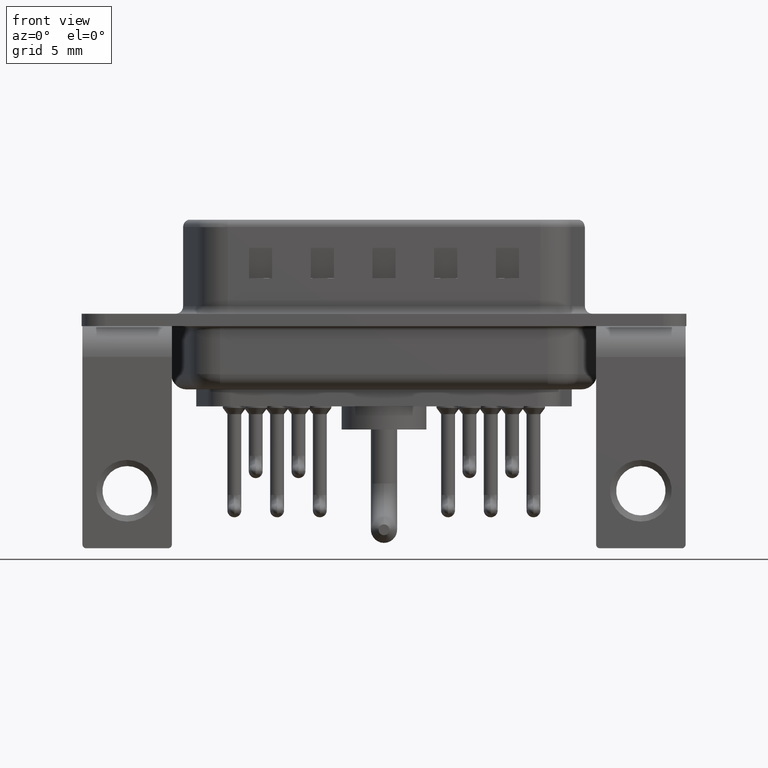
[diagram: clean part render]
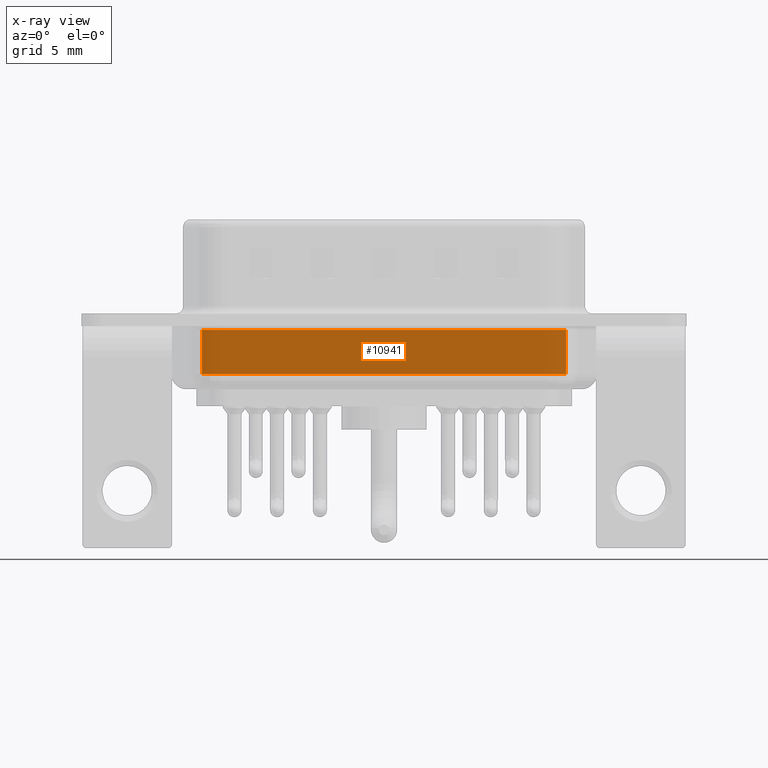
[diagram: x-ray — body ghosted, one internal face saturated and labeled with its STEP entity id]
A machine part, front view, then the same camera in x-ray: the body is ghosted and one INTERNAL B-rep face — a face not visible from any outside direction — is saturated and labeled: STEP entity #10941.
In plain terms, the highlighted planar face has unit normal (0, -1, 0).
Its self-contained STEP definition (entity closure, byte-faithful):
#767 = CARTESIAN_POINT ( 'NONE',  ( 28.44999999999999574, 4.950000000000001954, -3.499999999999999556 ) ) ;
#795 = CARTESIAN_POINT ( 'NONE',  ( 4.849999999999993427, 4.950000000000001954, -3.499999999999999556 ) ) ;
#1514 = CARTESIAN_POINT ( 'NONE',  ( 28.44999999999999574, 4.950000000000001954, -0.6500000000000000222 ) ) ;
#1849 = VERTEX_POINT ( 'NONE', #767 ) ;
#2234 = DIRECTION ( 'NONE',  ( -1.000000000000000000, 0.0000000000000000000, -0.0000000000000000000 ) ) ;
#2369 = AXIS2_PLACEMENT_3D ( 'NONE', #12657, #7006, #5232 ) ;
#2566 = CARTESIAN_POINT ( 'NONE',  ( 28.44999999999999574, 4.950000000000001954, -0.6500000000000000222 ) ) ;
#3049 = LINE ( 'NONE', #13692, #8797 ) ;
#3650 = DIRECTION ( 'NONE',  ( 1.000000000000000000, -0.0000000000000000000, 0.0000000000000000000 ) ) ;
#3676 = FACE_OUTER_BOUND ( 'NONE', #22910, .T. ) ;
#4720 = LINE ( 'NONE', #1514, #10244 ) ;
#5232 = DIRECTION ( 'NONE',  ( 0.0000000000000000000, 0.0000000000000000000, -1.000000000000000000 ) ) ;
#5729 = VECTOR ( 'NONE', #2234, 1000.000000000000000 ) ;
#7006 = DIRECTION ( 'NONE',  ( 0.0000000000000000000, -1.000000000000000000, -0.0000000000000000000 ) ) ;
#8797 = VECTOR ( 'NONE', #12048, 1000.000000000000000 ) ;
#9043 = CARTESIAN_POINT ( 'NONE',  ( 28.44999999999999574, 4.950000000000001954, -4.500000000000000000 ) ) ;
#9164 = ORIENTED_EDGE ( 'NONE', *, *, #9811, .F. ) ;
#9401 = VECTOR ( 'NONE', #10694, 1000.000000000000000 ) ;
#9811 = EDGE_CURVE ( 'NONE', #1849, #20987, #12993, .T. ) ;
#10244 = VECTOR ( 'NONE', #3650, 1000.000000000000000 ) ;
#10694 = DIRECTION ( 'NONE',  ( -0.0000000000000000000, -0.0000000000000000000, 1.000000000000000000 ) ) ;
#10941 = ADVANCED_FACE ( 'NONE', ( #3676 ), #21386, .T. ) ;
#11358 = EDGE_CURVE ( 'NONE', #12186, #12868, #4720, .T. ) ;
#11529 = ORIENTED_EDGE ( 'NONE', *, *, #16147, .T. ) ;
#12048 = DIRECTION ( 'NONE',  ( -0.0000000000000000000, -0.0000000000000000000, 1.000000000000000000 ) ) ;
#12186 = VERTEX_POINT ( 'NONE', #16958 ) ;
#12585 = EDGE_CURVE ( 'NONE', #20987, #12186, #3049, .T. ) ;
#12592 = ORIENTED_EDGE ( 'NONE', *, *, #12585, .F. ) ;
#12657 = CARTESIAN_POINT ( 'NONE',  ( 28.44999999999999574, 4.950000000000001954, -4.500000000000000000 ) ) ;
#12868 = VERTEX_POINT ( 'NONE', #2566 ) ;
#12993 = LINE ( 'NONE', #20163, #5729 ) ;
#13692 = CARTESIAN_POINT ( 'NONE',  ( 4.849999999999993427, 4.950000000000001954, -4.500000000000000000 ) ) ;
#16147 = EDGE_CURVE ( 'NONE', #1849, #12868, #22829, .T. ) ;
#16958 = CARTESIAN_POINT ( 'NONE',  ( 4.849999999999993427, 4.950000000000001954, -0.6500000000000000222 ) ) ;
#17772 = ORIENTED_EDGE ( 'NONE', *, *, #11358, .F. ) ;
#20163 = CARTESIAN_POINT ( 'NONE',  ( 28.44999999999999574, 4.950000000000001954, -3.499999999999999556 ) ) ;
#20987 = VERTEX_POINT ( 'NONE', #795 ) ;
#21386 = PLANE ( 'NONE',  #2369 ) ;
#22829 = LINE ( 'NONE', #9043, #9401 ) ;
#22910 = EDGE_LOOP ( 'NONE', ( #11529, #17772, #12592, #9164 ) ) ;